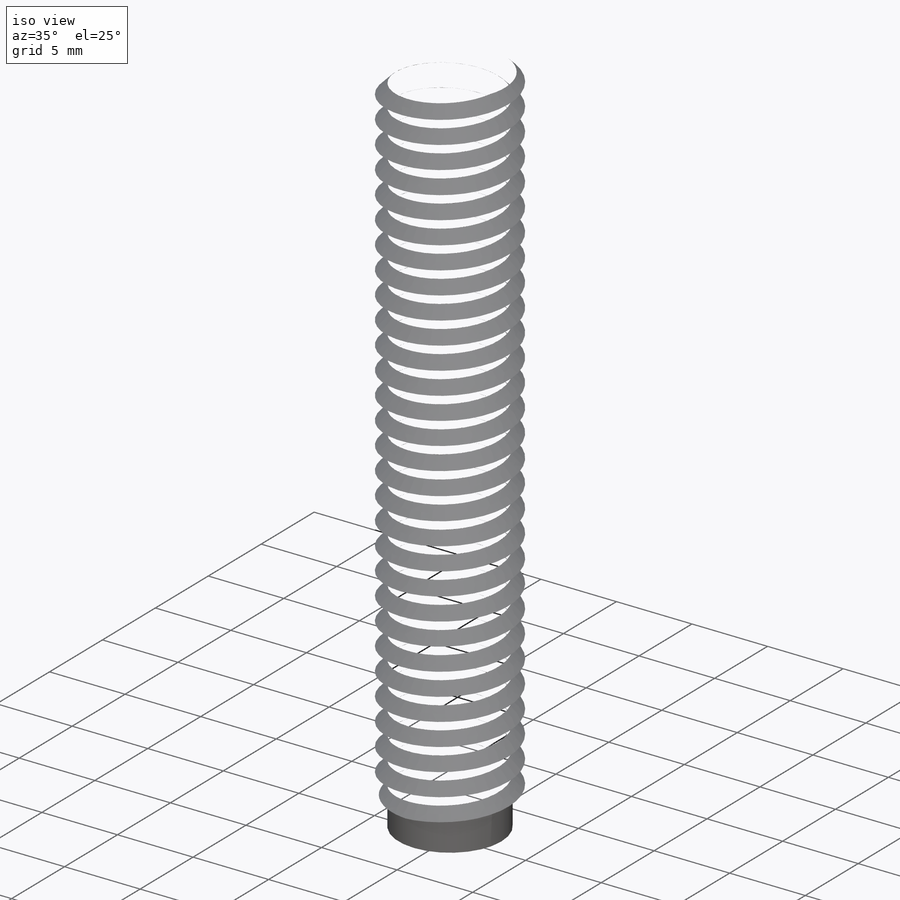
[diagram: iso view]
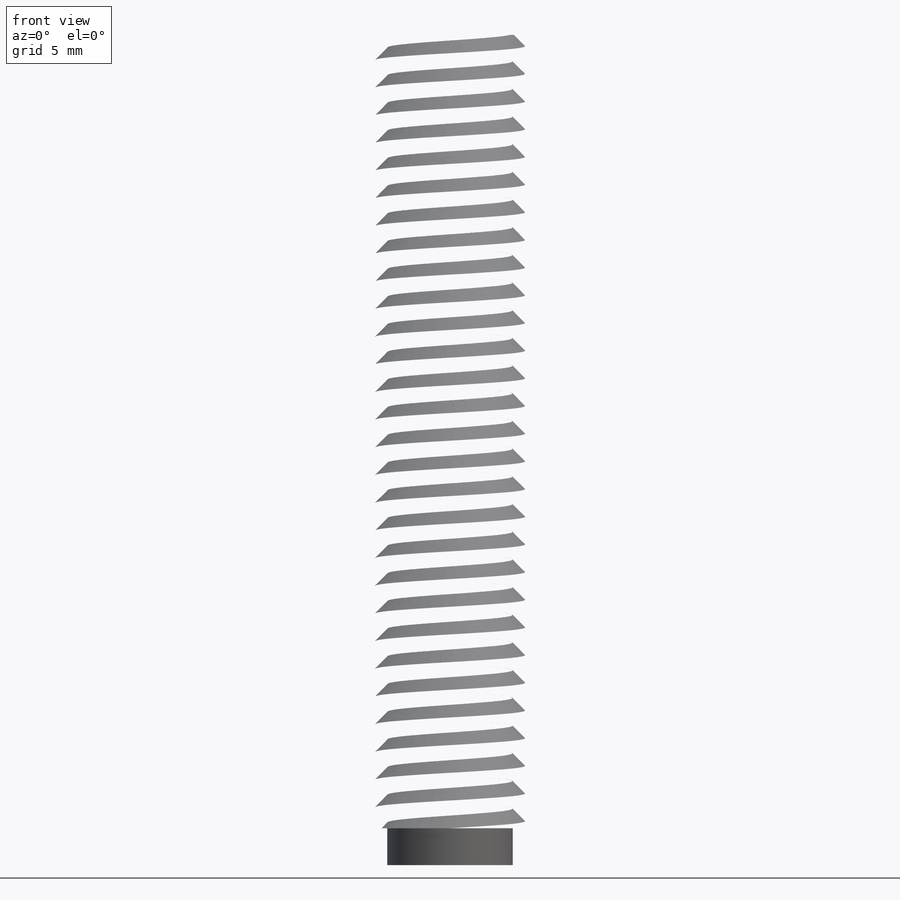
[diagram: front view]
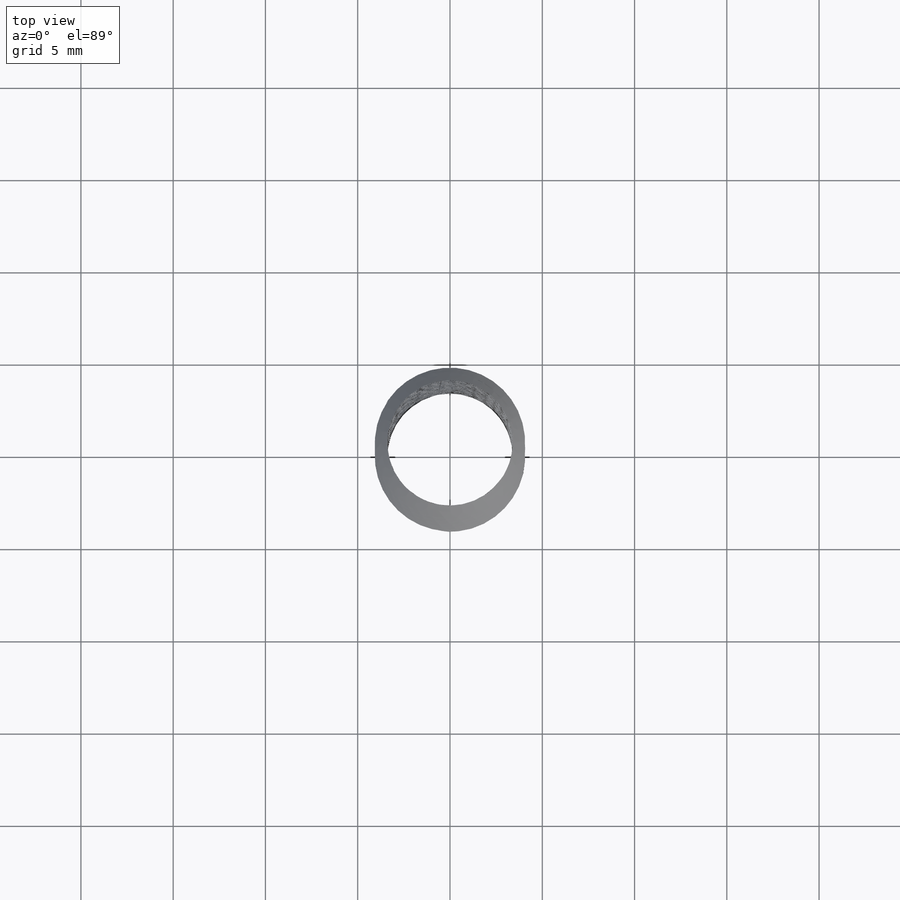
[diagram: top view]
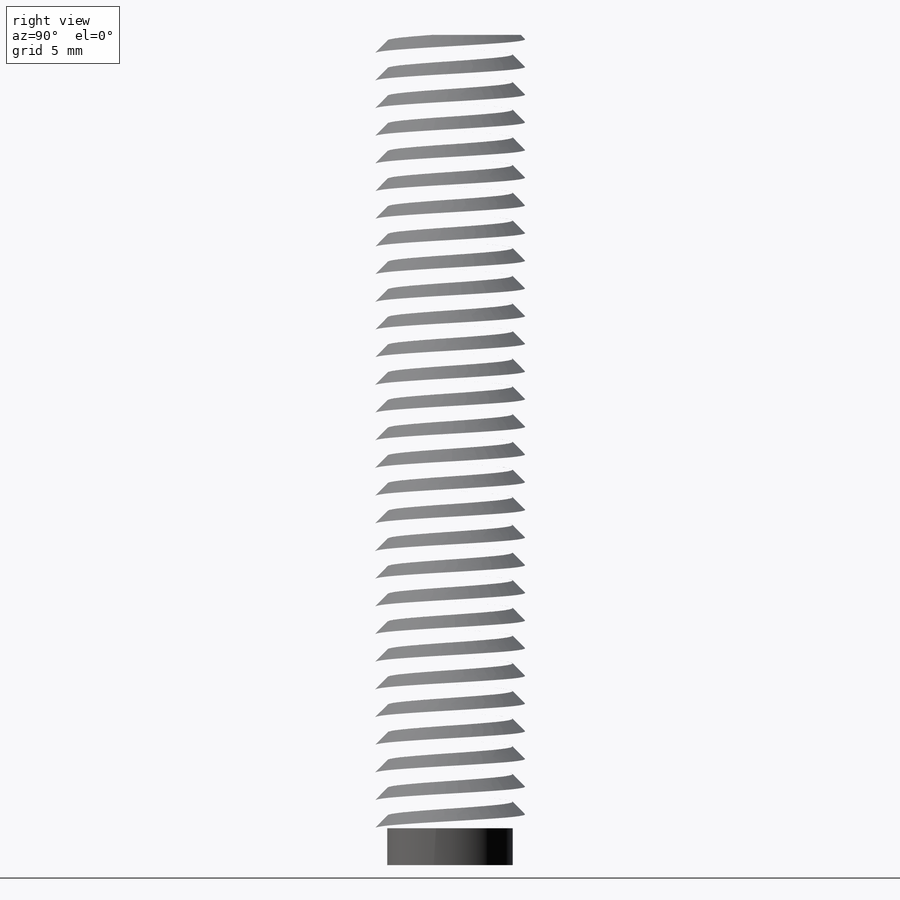
[diagram: right view]
SOLIDWORKS PART (.sldprt)
format: sldprt  version: not decoded by parser v0  size: 1,835,008 bytes
history: native  units: mm
features: sketch x7, plane x4, cut_extrude x3, extrude x2, material x1, helix x1, sweep x1 + 1 further entry (+7 scaffold rows collapsed)
feature tree (27):
  scaffold x7  (default folders/planes/origin — collapsed)
  material  "Material <not specified>"
  plane  "Vorne/Front"
  plane  "Oben/Top"
  plane  "Rechts/Right"
  "Ursprung/Origin"
  sketch  "Sketch1"  dims[c1.D1=~13.292658mm c2.D1=6.8mm]
  extrude  "Boss-Extrude1"  Depth=50mm
  sketch  "Sketch9"
  helix  "Helix/Spiral1"  Pitch=50mm
  plane  "Plane1"
  sketch  "Sketch14"  dims[D2=0.1mm D1=1.49mm D3=0.05mm]
  sweep  "Sweep5"
  sketch  "Sketch15"
  cut_extrude  "Cut-Extrude4"  [1 undecoded]
  sketch  "Sketch17"  dims[D1=5.0mm]
  cut_extrude  "Cut-Extrude6"  [1 undecoded]
  sketch  "Sketch21"  dims[D1=12.0mm]
  extrude  "Boss-Extrude9"  Depth=8mm
  sketch  "Sketch23"  dims[D1=0.0mm]
  cut_extrude  "Cut-Extrude8"  Depth=2mm
decode coverage: 9 of 14 modeling features carry decoded parameters; 1 rows unclassified (native names shown)
note: ~ marks probable driven/reference dimensions
note: 2 parameter values undecoded
note: suppression state not decoded; provenance and decode notes live in map.json
